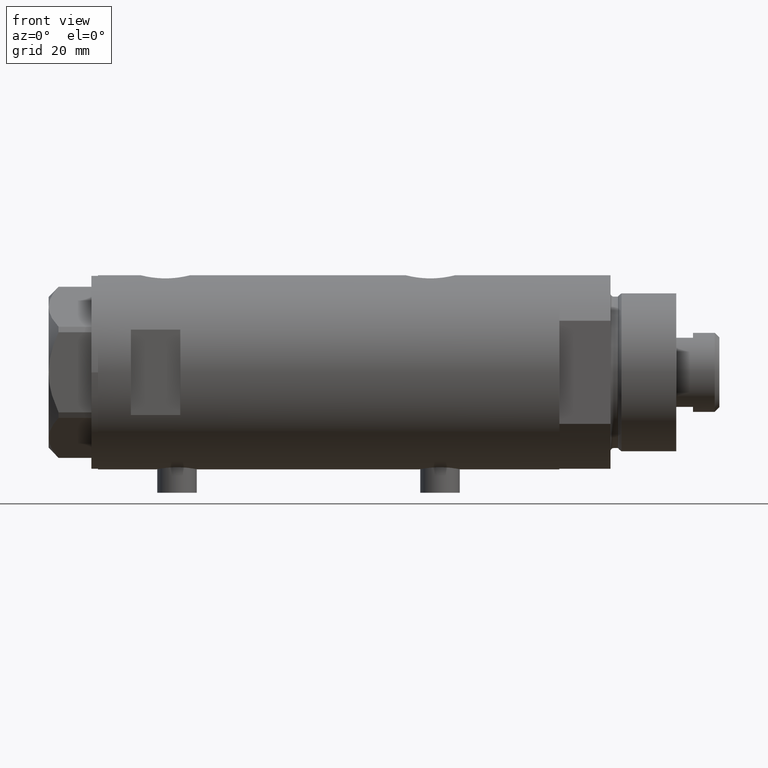
[diagram: clean part render]
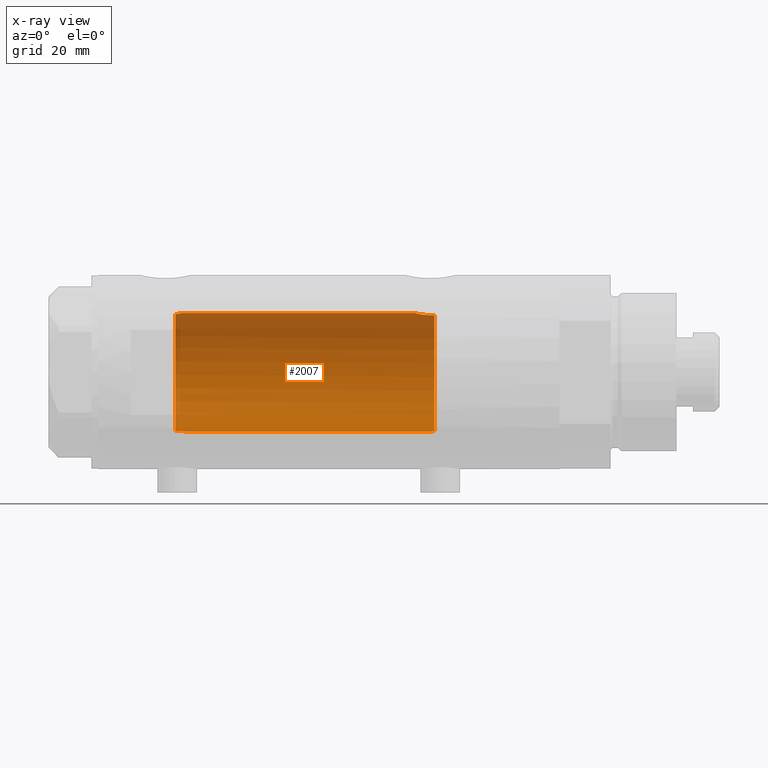
[diagram: x-ray — body ghosted, one internal face saturated and labeled with its STEP entity id]
A machine part, front view, then the same camera in x-ray: the body is ghosted and one INTERNAL B-rep face — a face not visible from any outside direction — is saturated and labeled: STEP entity #2007.
In plain terms, the highlighted cylindrical surface (partial cylindrical patch) has radius 18 mm, axis along (1, 0, -0).
Its self-contained STEP definition (entity closure, byte-faithful):
#5 = CARTESIAN_POINT ( 'NONE',  ( 17.63704841537101231, 3.603891093161669890, 46.31145343596539732 ) ) ;
#8 = EDGE_CURVE ( 'NONE', #485, #3161, #183, .T. ) ;
#65 = EDGE_CURVE ( 'NONE', #917, #509, #3789, .T. ) ;
#72 = CARTESIAN_POINT ( 'NONE',  ( 17.43128843254318028, 4.489613141718952427, -29.01700003713170517 ) ) ;
#90 = DIRECTION ( 'NONE',  ( -0.000000000000000000, -0.000000000000000000, -1.000000000000000000 ) ) ;
#105 = DIRECTION ( 'NONE',  ( 0.000000000000000000, 0.000000000000000000, -1.000000000000000000 ) ) ;
#183 = B_SPLINE_CURVE_WITH_KNOTS ( 'NONE', 3,
 ( #1297, #2444, #230, #3175, #2475, #3947, #593, #3196, #2790, #1712, #4259, #2834, #1336, #2085, #4654, #4610 ),
 .UNSPECIFIED., .F., .F.,
 ( 4, 2, 2, 2, 2, 2, 2, 4 ),
 ( 0.007825597788866840016, 0.008929372539743372916, 0.009481259915181635897, 0.01003314729061989888, 0.01058503466605816012, 0.01113692204149642484, 0.01168880941693468609, 0.01224069679237294907 ),
 .UNSPECIFIED. ) ;
#189 = CARTESIAN_POINT ( 'NONE',  ( -17.91832049203241439, 1.716810780632728184, -31.97468596615661696 ) ) ;
#220 = EDGE_CURVE ( 'NONE', #2989, #2966, #1351, .T. ) ;
#230 = CARTESIAN_POINT ( 'NONE',  ( -17.98790814410162042, 0.7389993272946837610, 43.68352974933832655 ) ) ;
#265 = CIRCLE ( 'NONE', #3915, 18.00000000000000000 ) ;
#299 = CARTESIAN_POINT ( 'NONE',  ( 17.99716691696286119, 0.3685254503903833134, -26.04545042928660337 ) ) ;
#397 = CARTESIAN_POINT ( 'NONE',  ( 17.68814035493779357, 3.348626323852638365, 46.05183600219630335 ) ) ;
#425 = CARTESIAN_POINT ( 'NONE',  ( 17.85293122918850273, 2.302201220737755794, 45.31031080804816469 ) ) ;
#485 = VERTEX_POINT ( 'NONE', #2353 ) ;
#497 = DIRECTION ( 'NONE',  ( 1.000000000000000000, 0.000000000000000000, 0.000000000000000000 ) ) ;
#503 = EDGE_LOOP ( 'NONE', ( #1347, #4083, #4081, #2033, #3501, #3743, #2703, #2538 ) ) ;
#509 = VERTEX_POINT ( 'NONE', #1915 ) ;
#531 = EDGE_CURVE ( 'NONE', #1238, #3161, #265, .T. ) ;
#540 = CARTESIAN_POINT ( 'NONE',  ( 17.63589737371338728, 3.604488512479870899, -27.62742655266249514 ) ) ;
#593 = CARTESIAN_POINT ( 'NONE',  ( -17.90830209998921063, 1.818440982043828980, 44.37434744171714129 ) ) ;
#601 = VECTOR ( 'NONE', #2004, 1000.000000000000000 ) ;
#620 = CARTESIAN_POINT ( 'NONE',  ( 17.85236636886078188, 2.306694554785099882, -26.61264586133006205 ) ) ;
#628 = DIRECTION ( 'NONE',  ( -1.000000000000000000, 0.000000000000000000, 0.000000000000000000 ) ) ;
#847 = CARTESIAN_POINT ( 'NONE',  ( 17.33262691996380767, 4.855935766715061774, -31.37488940890200695 ) ) ;
#917 = VERTEX_POINT ( 'NONE', #4515 ) ;
#940 = CARTESIAN_POINT ( 'NONE',  ( -17.93028482699292425, 1.588885888720747319, -31.86224988169317740 ) ) ;
#1014 = EDGE_CURVE ( 'NONE', #1238, #917, #4341, .T. ) ;
#1130 = AXIS2_PLACEMENT_3D ( 'NONE', #2116, #2891, #628 ) ;
#1161 = CARTESIAN_POINT ( 'NONE',  ( 17.94405978035183935, 1.463580074031384681, -26.24553017623722795 ) ) ;
#1173 = CARTESIAN_POINT ( 'NONE',  ( 17.98843015915091570, 0.7391836159806497442, 44.77731130524778536 ) ) ;
#1175 = DIRECTION ( 'NONE',  ( 0.000000000000000000, 0.000000000000000000, 1.000000000000000000 ) ) ;
#1182 = CARTESIAN_POINT ( 'NONE',  ( 17.41328271218089441, 4.558641711475903691, -29.19087254718659352 ) ) ;
#1238 = VERTEX_POINT ( 'NONE', #2156 ) ;
#1255 = CARTESIAN_POINT ( 'NONE',  ( 17.53642083926971651, 4.065376572064631766, -28.20260027543616133 ) ) ;
#1297 = CARTESIAN_POINT ( 'NONE',  ( -18.00000000000000000, 3.061617490167439571E-16, 43.59999999999999432 ) ) ;
#1312 = EDGE_CURVE ( 'NONE', #509, #3402, #1910, .T. ) ;
#1336 = CARTESIAN_POINT ( 'NONE',  ( -17.82614870471583401, 2.495683684402668412, 45.86291490437698570 ) ) ;
#1347 = ORIENTED_EDGE ( 'NONE', *, *, #65, .F. ) ;
#1351 = B_SPLINE_CURVE_WITH_KNOTS ( 'NONE', 3,
 ( #2113, #189, #940, #3254, #3184, #2798, #4000, #1674 ),
 .UNSPECIFIED., .F., .F.,
 ( 4, 2, 2, 4 ),
 ( 0.01360098575045322854, 0.01411306367951528987, 0.01462514160857735120, 0.01564929746670147212 ),
 .UNSPECIFIED. ) ;
#1429 = VECTOR ( 'NONE', #90, 1000.000000000000000 ) ;
#1478 = CARTESIAN_POINT ( 'NONE',  ( 17.37157951943346035, 4.714681855650494136, -32.09999999999998721 ) ) ;
#1555 = CARTESIAN_POINT ( 'NONE',  ( 17.78478726694685363, 2.779555353823084385, -26.90297143050466389 ) ) ;
#1575 = CARTESIAN_POINT ( 'NONE',  ( 17.38237957915196930, 4.675094569549004930, -29.54138980228257338 ) ) ;
#1605 = CARTESIAN_POINT ( 'NONE',  ( 17.61032289555864949, 3.726910670425181316, -27.76756985850231274 ) ) ;
#1674 = CARTESIAN_POINT ( 'NONE',  ( -18.00000000000000000, 0.000000000000000000, -31.29999999999999361 ) ) ;
#1712 = CARTESIAN_POINT ( 'NONE',  ( -17.85029215802978086, 2.318176074868584902, 45.14613149013026572 ) ) ;
#1758 = CIRCLE ( 'NONE', #4765, 18.00000000000000000 ) ;
#1886 = CARTESIAN_POINT ( 'NONE',  ( 17.78617492856930227, 2.770629413254892537, 45.59682049650071178 ) ) ;
#1910 = B_SPLINE_CURVE_WITH_KNOTS ( 'NONE', 3,
 ( #3267, #4018, #299, #4727, #3655, #1161, #3950, #620, #2656, #1555, #3868, #3793, #3405, #540, #1605, #1255, #3138, #72, #1182, #1575, #2727, #1924, #3838, #4528, #847, #3115, #2363 ),
 .UNSPECIFIED., .F., .F.,
 ( 4, 2, 2, 2, 2, 2, 2, 2, 2, 2, 1, 2, 2, 4 ),
 ( 0.01528157848519460724, 0.01583467956029641077, 0.01638778063539821778, 0.01749398278560182485, 0.01804708386070362838, 0.01860018493580543539, 0.01915328601090723892, 0.01970638708600904593, 0.02081258923621266341, 0.02136569031131447041, 0.02191879138641628089, 0.02247189246151808789, 0.02302499353661989837, 0.02413119568682349503 ),
 .UNSPECIFIED. ) ;
#1915 = CARTESIAN_POINT ( 'NONE',  ( 18.00000000000000000, 5.958021437579254357E-16, -26.03499999999998948 ) ) ;
#1924 = CARTESIAN_POINT ( 'NONE',  ( 17.34085862114803334, 4.826483754267694160, -30.26145238513612767 ) ) ;
#1949 = CARTESIAN_POINT ( 'NONE',  ( -18.00000000000000000, 0.000000000000000000, -31.29999999999999361 ) ) ;
#2004 = DIRECTION ( 'NONE',  ( -0.000000000000000000, -0.000000000000000000, -1.000000000000000000 ) ) ;
#2007 = ADVANCED_FACE ( 'NONE', ( #2097 ), #2461, .F. ) ;
#2033 = ORIENTED_EDGE ( 'NONE', *, *, #8, .F. ) ;
#2085 = CARTESIAN_POINT ( 'NONE',  ( -17.82508408272473588, 2.503276281002380976, 46.23510831259082465 ) ) ;
#2097 = FACE_OUTER_BOUND ( 'NONE', #503, .T. ) ;
#2113 = CARTESIAN_POINT ( 'NONE',  ( -17.90642342847950275, 1.833030277983155099, -32.09999999999931930 ) ) ;
#2116 = CARTESIAN_POINT ( 'NONE',  ( 0.000000000000000000, 0.000000000000000000, 70.09999999999999432 ) ) ;
#2156 = CARTESIAN_POINT ( 'NONE',  ( 17.58783030962034033, 3.829911878881814058, 46.59999999999999432 ) ) ;
#2167 = EDGE_CURVE ( 'NONE', #2989, #3402, #1758, .T. ) ;
#2277 = CARTESIAN_POINT ( 'NONE',  ( 17.58783030962034033, 3.829911878881814058, 46.59999999999999432 ) ) ;
#2353 = CARTESIAN_POINT ( 'NONE',  ( -18.00000000000000000, 3.061617490167439571E-16, 43.59999999999999432 ) ) ;
#2363 = CARTESIAN_POINT ( 'NONE',  ( 17.37157951943346035, 4.714681855650494136, -32.09999999999998721 ) ) ;
#2444 = CARTESIAN_POINT ( 'NONE',  ( -18.00000000000000000, 0.3684436523298872390, 43.59999999999999432 ) ) ;
#2461 = CYLINDRICAL_SURFACE ( 'NONE', #1130, 18.00000000000000000 ) ;
#2475 = CARTESIAN_POINT ( 'NONE',  ( -17.94624864476197601, 1.397590066628590089, 44.01900161024211400 ) ) ;
#2538 = ORIENTED_EDGE ( 'NONE', *, *, #1312, .F. ) ;
#2656 = CARTESIAN_POINT ( 'NONE',  ( 17.83051055968251930, 2.469307448774135771, -26.70420614498792133 ) ) ;
#2668 = CARTESIAN_POINT ( 'NONE',  ( 18.00000000000001066, 0.3728474842072352358, 44.73499999999999233 ) ) ;
#2703 = ORIENTED_EDGE ( 'NONE', *, *, #2167, .T. ) ;
#2708 = CARTESIAN_POINT ( 'NONE',  ( -17.90642342847950275, 1.833030277983155099, -32.09999999999931930 ) ) ;
#2723 = CARTESIAN_POINT ( 'NONE',  ( 18.00000000000000000, 2.204364238465235033E-15, 70.09999999999999432 ) ) ;
#2727 = CARTESIAN_POINT ( 'NONE',  ( 17.35631194664785681, 4.771042759406570077, -29.89667763205954643 ) ) ;
#2729 = CARTESIAN_POINT ( 'NONE',  ( -18.00000000000000000, 0.000000000000000000, 70.09999999999999432 ) ) ;
#2790 = CARTESIAN_POINT ( 'NONE',  ( -17.87088460660653766, 2.153683778660673287, 44.81724841463823594 ) ) ;
#2798 = CARTESIAN_POINT ( 'NONE',  ( -17.98949107760678245, 0.6899666364176350042, -31.37303358989279545 ) ) ;
#2808 = LINE ( 'NONE', #2729, #601 ) ;
#2834 = CARTESIAN_POINT ( 'NONE',  ( -17.82958311517956673, 2.471426257451379449, 45.68046645260446326 ) ) ;
#2891 = DIRECTION ( 'NONE',  ( -0.000000000000000000, -0.000000000000000000, -1.000000000000000000 ) ) ;
#2966 = VERTEX_POINT ( 'NONE', #1949 ) ;
#2976 = CARTESIAN_POINT ( 'NONE',  ( 17.76196254920472128, 2.921230608637938264, 45.70535341986154521 ) ) ;
#2989 = VERTEX_POINT ( 'NONE', #2708 ) ;
#3029 = CARTESIAN_POINT ( 'NONE',  ( 17.94167814235965608, 1.458276351914867375, 44.95504464479716233 ) ) ;
#3115 = CARTESIAN_POINT ( 'NONE',  ( 17.34671983132638928, 4.806279138776324622, -31.74012329268312982 ) ) ;
#3138 = CARTESIAN_POINT ( 'NONE',  ( 17.49030773641652914, 4.256160900234553068, -28.51469509681785652 ) ) ;
#3153 = EDGE_CURVE ( 'NONE', #485, #2966, #2808, .T. ) ;
#3161 = VERTEX_POINT ( 'NONE', #4273 ) ;
#3175 = CARTESIAN_POINT ( 'NONE',  ( -17.95816418424195149, 1.237771781631973544, 43.92014148713398924 ) ) ;
#3184 = CARTESIAN_POINT ( 'NONE',  ( -17.96336505771914105, 1.158437137172629861, -31.57804627005672415 ) ) ;
#3196 = CARTESIAN_POINT ( 'NONE',  ( -17.88283752013080274, 2.053809615874006678, 44.66247768058084944 ) ) ;
#3254 = CARTESIAN_POINT ( 'NONE',  ( -17.95286768021396995, 1.309280107997290443, -31.66336257470373639 ) ) ;
#3267 = CARTESIAN_POINT ( 'NONE',  ( 18.00000000000000000, 5.958021437579254357E-16, -26.03499999999998948 ) ) ;
#3276 = CARTESIAN_POINT ( 'NONE',  ( 0.000000000000000000, 0.000000000000000000, -32.09999999999998721 ) ) ;
#3363 = DIRECTION ( 'NONE',  ( -1.000000000000000000, 0.000000000000000000, 0.000000000000000000 ) ) ;
#3365 = CARTESIAN_POINT ( 'NONE',  ( 17.91007218376326193, 1.805463612197654166, 45.07866376881659676 ) ) ;
#3394 = CARTESIAN_POINT ( 'NONE',  ( 17.89217382667230538, 1.974183297225218015, 45.14981302266163965 ) ) ;
#3402 = VERTEX_POINT ( 'NONE', #1478 ) ;
#3405 = CARTESIAN_POINT ( 'NONE',  ( 17.68656644271517919, 3.347025706529857647, -27.36453774950910756 ) ) ;
#3501 = ORIENTED_EDGE ( 'NONE', *, *, #3153, .T. ) ;
#3655 = CARTESIAN_POINT ( 'NONE',  ( 17.97733715731490989, 0.9209699998971186963, -26.11935966604423598 ) ) ;
#3743 = ORIENTED_EDGE ( 'NONE', *, *, #220, .F. ) ;
#3755 = CARTESIAN_POINT ( 'NONE',  ( 17.83158514913445103, 2.461498934476296085, 45.39965995681277633 ) ) ;
#3789 = LINE ( 'NONE', #2723, #1429 ) ;
#3793 = CARTESIAN_POINT ( 'NONE',  ( 17.71174132276682300, 3.211689381115074404, -27.24121359250871421 ) ) ;
#3827 = CARTESIAN_POINT ( 'NONE',  ( 0.000000000000000000, 0.000000000000000000, 46.59999999999999432 ) ) ;
#3838 = CARTESIAN_POINT ( 'NONE',  ( 17.33118376015917761, 4.861110225087389658, -30.63112109378173287 ) ) ;
#3868 = CARTESIAN_POINT ( 'NONE',  ( 17.76085061188611292, 2.927954048074870030, -27.01043039029093151 ) ) ;
#3915 = AXIS2_PLACEMENT_3D ( 'NONE', #3827, #1175, #497 ) ;
#3947 = CARTESIAN_POINT ( 'NONE',  ( -17.92135699193088882, 1.687027558082476064, 44.24588287565643441 ) ) ;
#3950 = CARTESIAN_POINT ( 'NONE',  ( 17.91189082287941758, 1.809824880389070856, -26.36912370284669294 ) ) ;
#4000 = CARTESIAN_POINT ( 'NONE',  ( -18.00000000000000711, 0.3463326441765515185, -31.30000000000000071 ) ) ;
#4018 = CARTESIAN_POINT ( 'NONE',  ( 18.00000000000000355, 0.1844036484100888829, -26.03499999999999659 ) ) ;
#4081 = ORIENTED_EDGE ( 'NONE', *, *, #531, .T. ) ;
#4083 = ORIENTED_EDGE ( 'NONE', *, *, #1014, .F. ) ;
#4136 = CARTESIAN_POINT ( 'NONE',  ( 18.00000000000000000, 0.000000000000000000, 44.73499999999999233 ) ) ;
#4259 = CARTESIAN_POINT ( 'NONE',  ( -17.84158955897572341, 2.383204526717108696, 45.32263758307627910 ) ) ;
#4273 = CARTESIAN_POINT ( 'NONE',  ( -17.83255450012701004, 2.449489742783180546, 46.59999999999999432 ) ) ;
#4341 = B_SPLINE_CURVE_WITH_KNOTS ( 'NONE', 3,
 ( #2277, #5, #397, #2976, #1886, #3755, #425, #3394, #3365, #3029, #4491, #1173, #2668, #4136 ),
 .UNSPECIFIED., .F., .F.,
 ( 4, 2, 2, 2, 2, 2, 4 ),
 ( 0.02614985543880328500, 0.02725214354003946404, 0.02780328759065755356, 0.02835443164127564308, 0.02890557569189372913, 0.02945671974251181865, 0.03055900784374799770 ),
 .UNSPECIFIED. ) ;
#4491 = CARTESIAN_POINT ( 'NONE',  ( 17.95540531162507136, 1.279032093992328756, 44.90250861430337892 ) ) ;
#4515 = CARTESIAN_POINT ( 'NONE',  ( 18.00000000000000000, 0.000000000000000000, 44.73499999999999233 ) ) ;
#4528 = CARTESIAN_POINT ( 'NONE',  ( 17.32928165965088141, 4.867855194001449171, -30.81899018256647693 ) ) ;
#4610 = CARTESIAN_POINT ( 'NONE',  ( -17.83255450012701004, 2.449489742783180546, 46.59999999999999432 ) ) ;
#4654 = CARTESIAN_POINT ( 'NONE',  ( -17.82749843654113420, 2.486298441295540229, 46.41967494109754000 ) ) ;
#4727 = CARTESIAN_POINT ( 'NONE',  ( 17.98587882862718601, 0.7362002489460848231, -26.08746722239206761 ) ) ;
#4765 = AXIS2_PLACEMENT_3D ( 'NONE', #3276, #105, #3363 ) ;